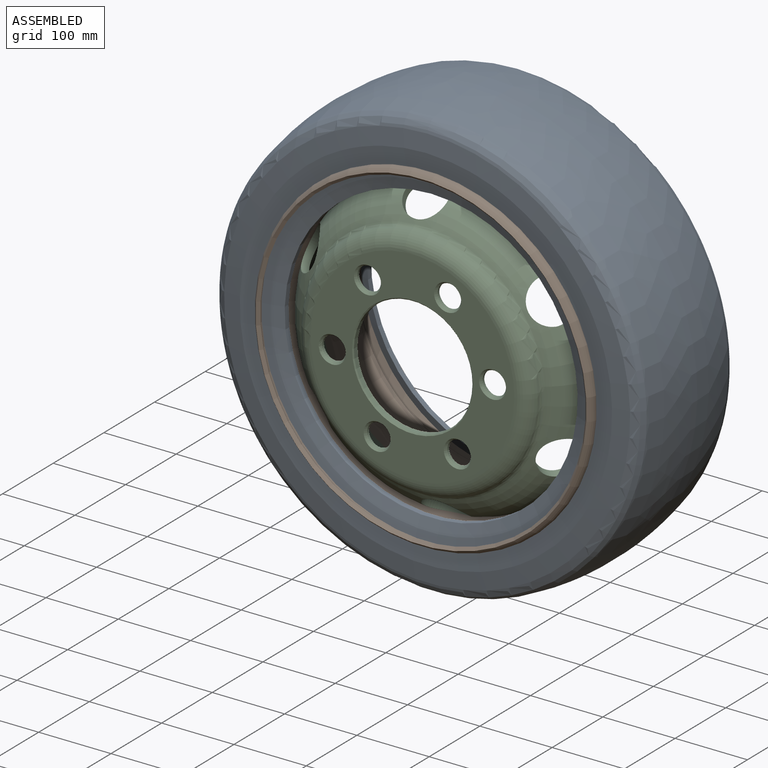
[diagram: assembled view]
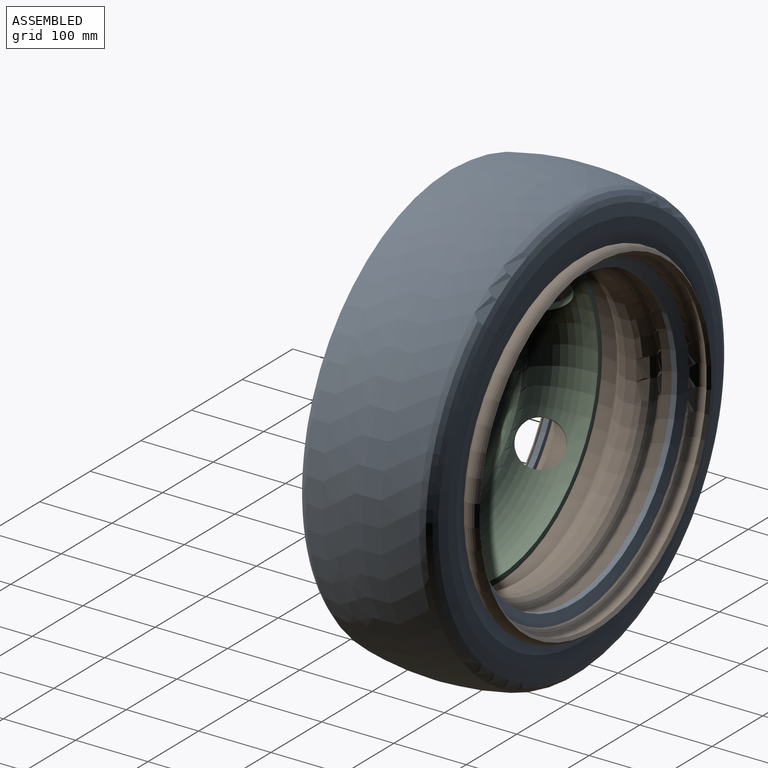
[diagram: assembled view, second angle]
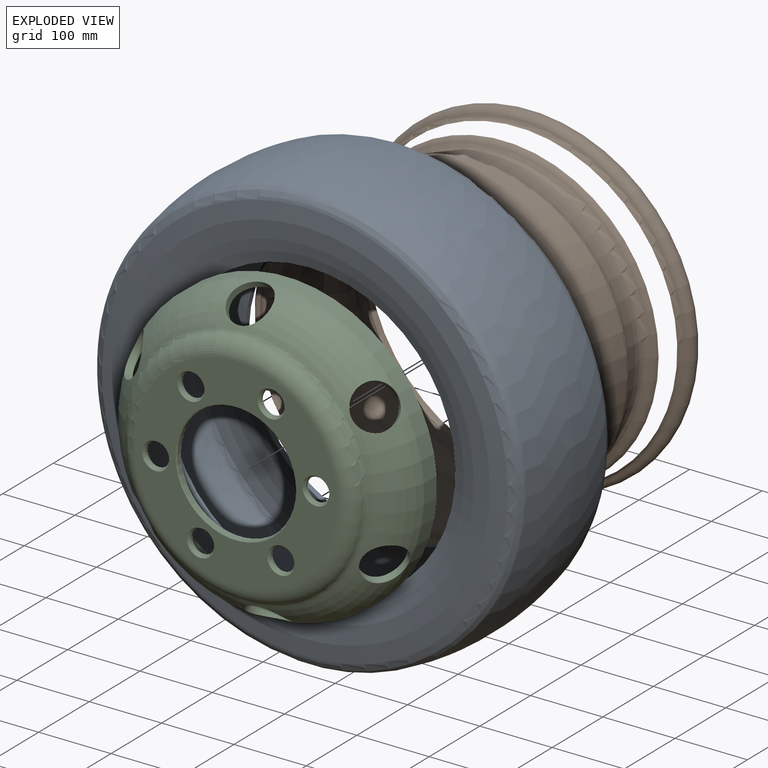
[diagram: exploded view]
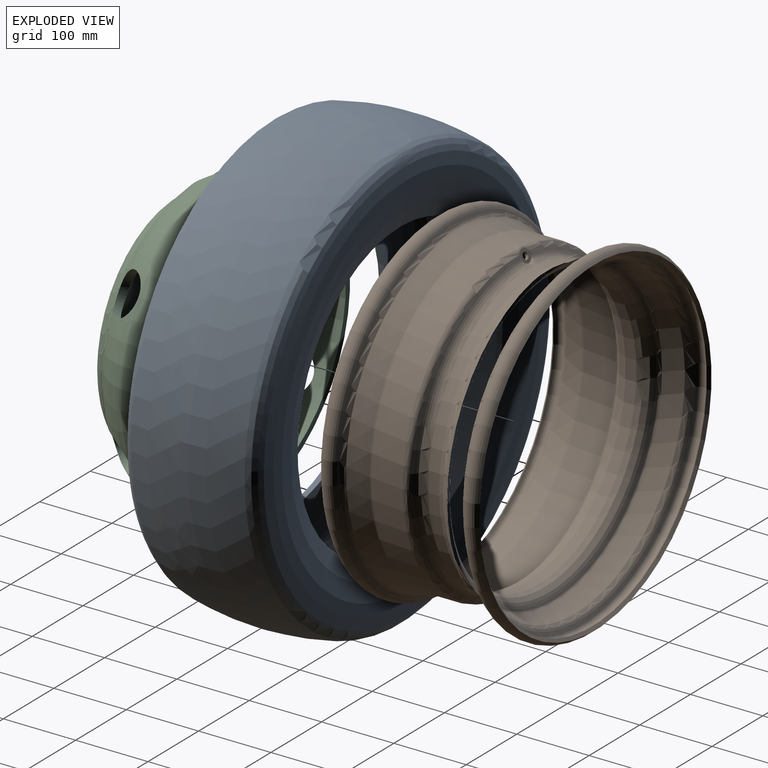
[diagram: exploded view, second angle]
ASSEMBLY  parts=3 mates=2
PART A: 16 faces, bbox 191.3x764.1x764.1 mm
  f0: torus R=255.09mm, axis (-1,0,0), area 120837.5mm2, adj f1,f15
  f1: cylinder r=202.58mm len=405.16mm, axis (-1,0,0), area 9680.7mm2, adj f0,f2
  f2: torus R=255.09mm, axis (-1,0,0), area 118746.3mm2, adj f1,f3
  f3: torus R=277.05mm, axis (-1,0,0), area 27227mm2, adj f2,f4
  f4: revolved ~596x596mm, area 133522.9mm2, adj f3,f5
  f5: cylinder r=298mm len=596mm, axis (-1,0,0), area 18542.4mm2, adj f4,f6
  f6: revolved ~596x596mm, area 133522.9mm2, adj f5,f7
  f7: torus R=277.05mm, axis (-1,0,0), area 27227mm2, adj f6,f8
  f8: torus R=255.09mm, axis (-1,0,0), area 118746.3mm2, adj f7,f9
  f9: cylinder r=202.58mm len=405.16mm, axis (-1,0,0), area 9680.7mm2, adj f8,f10
  f10: torus R=255.09mm, axis (-1,0,0), area 120837.5mm2, adj f9,f11
  f11: torus R=277.05mm, axis (-1,0,0), area 42563.2mm2, adj f10,f12
  f12: revolved ~610x610mm, area 139445.5mm2, adj f11,f13
  f13: cylinder r=305mm len=610mm, axis (-1,0,0), area 19163.7mm2, adj f12,f14
  f14: revolved ~610x610mm, area 139445.5mm2, adj f13,f15
  f15: torus R=277.05mm, axis (-1,0,0), area 42563.2mm2, adj f0,f14
PART B: 90 faces, bbox 508.8x219.6x508.8 mm
  f0: cone r=0mm half-angle=45deg, axis (0,-1,0), area 4742.4mm2, adj f1,f85
  f1: cone r=0mm half-angle=45deg, axis (0,1,0), area 7843.4mm2, adj f0,f2
  f2: cone r=0mm half-angle=45deg, axis (0,-1,0), area 4662.2mm2, adj f1,f3
  f3: torus R=222.25mm, axis (0,-1,0), area 21063.9mm2, adj f2,f4
  f4: torus R=228.66mm, axis (0,-1,0), area 18488.7mm2, adj f3,f5
  f5: cone r=0mm half-angle=15deg, axis (0,1,0), area 36774.8mm2, adj f4,f6
  f6: torus R=202.2mm, axis (0,-1,0), area 7378.3mm2, adj f5,f7
  f7: cone r=0mm half-angle=65deg, axis (0,1,0), area 400.9mm2, adj f6,f8
  f8: torus R=213.75mm, axis (0,-1,0), area 30125.6mm2, adj f7,f9
  f9: cylinder r=192.25mm len=384.5mm, axis (0,-1,0), area 18119.1mm2, adj f8,f10
  f10: torus R=213.75mm, axis (0,-1,0), area 29631.9mm2, adj f9,f11,f13,f14,f16,f17,f19,f87
  f11: bspline ~5.61x3.63mm, area 11mm2, adj f10,f12,f20,f21
  f12: bspline ~2.96x1.93mm, area 2.2mm2, adj f11,f13,f21,f22
  f13: bspline ~11.58x8.4mm, area 26.2mm2, adj f10,f12,f14,f23,f86
  f14: bspline ~11.53x8.48mm, area 14.3mm2, adj f10,f13,f15
  f15: cone r=0mm half-angle=27deg, axis (-0.03,0.89,0.45), area 52.2mm2, adj f14,f16,f86
  f16: bspline ~11.64x8.72mm, area 14.3mm2, adj f10,f15,f87
  f17: bspline ~5.45x3.69mm, area 11mm2, adj f10,f18,f21,f88
  f18: bspline ~6.88x6.08mm, area 19.1mm2, adj f17,f19,f21,f78
  f19: torus R=202.25mm, axis (0,-1,0), area 7964.2mm2, adj f10,f18,f20,f73,f74,f76,f78
  f20: bspline ~6.91x6.84mm, area 19.1mm2, adj f11,f19,f21,f76
  f21: torus R=7mm, axis (-0.03,0.89,0.45), area 23.8mm2, adj f11,f12,f17,f18,f20,f22,f25,f77
  f22: bspline ~1.82x0.97mm, area 0.5mm2, adj f12,f21,f23
  f23: cylinder r=5.69mm len=1.15mm, axis (-1,-0.05,0.03), area 0.2mm2, adj f13,f22,f25
  f24: cylinder r=5.69mm len=1.18mm, axis (-0.99,0.04,-0.14), area 0.2mm2, adj f25,f87,f89
  f25: plane 14x13.35mm, normal (0.03,-0.89,-0.45), area 93.6mm2, adj f21,f23,f24,f26,f86
  f26: cylinder r=4.85mm len=10.69mm, axis (-0.03,0.89,0.45), area 137.5mm2, adj f25,f27
  f27: plane 18.14x15.87mm, normal (-0.03,0.89,0.45), area 174.5mm2, adj f26,f28,f31,f49,f50,f53,f54
  f28: bspline ~1.31x0.96mm, area 0.4mm2, adj f27,f29,f30,f54
  f29: bspline ~1.5x0.94mm, area 0.4mm2, adj f28,f30,f44,f55
  f30: bspline ~1.74x1.36mm, area 1.1mm2, adj f28,f29,f31,f45
  f31: torus R=9mm, axis (-0.03,0.89,0.45), area 38.8mm2, adj f27,f30,f32,f36,f38,f45,f46,f47
  f32: bspline ~9.01x8.63mm, area 23.3mm2, adj f31,f33,f34,f45
  f33: torus R=213.75mm, axis (0,-1,0), area 22566.3mm2, adj f32,f34,f37,f38,f39,f41,f44,f79
  f34: bspline ~5.61x4.9mm, area 9.7mm2, adj f32,f33,f35,f36,f41
  f35: torus R=12mm, axis (-0.03,0.89,0.45), area 7.8mm2, adj f34,f36,f40,f42
  f36: cylinder r=10mm len=12.57mm, axis (-0.03,0.89,0.45), area 18.1mm2, adj f31,f34,f35,f37
  f37: bspline ~5.6x5.07mm, area 9.5mm2, adj f33,f36,f38,f42,f43
  f38: bspline ~8.7x8.36mm, area 23.3mm2, adj f31,f33,f37,f46
  f39: bspline ~8.27x6.32mm, area 6.2mm2, adj f33,f40,f43
  f40: cone r=0mm half-angle=27deg, axis (-0.03,0.89,0.45), area 30.9mm2, adj f35,f39,f41,f42
  f41: bspline ~8.45x6.29mm, area 6.4mm2, adj f33,f34,f40
  f42: bspline ~1.33x1.02mm, area 0.6mm2, adj f35,f37,f40,f43
  f43: bspline ~1.72x1.34mm, area 0.3mm2, adj f37,f39,f42
  f44: torus R=202.25mm, axis (0,-1,0), area 16264.6mm2, adj f29,f33,f45,f46,f48,f51,f55,f56
  f45: bspline ~3.59x2.86mm, area 4.2mm2, adj f30,f31,f32,f44
  f46: bspline ~3.58x2.5mm, area 4.2mm2, adj f31,f38,f44,f47
  f47: bspline ~1.74x1.4mm, area 1.1mm2, adj f31,f46,f48,f49
  f48: bspline ~1.39x1.14mm, area 0.6mm2, adj f44,f47,f49,f51
  f49: bspline ~1.1x0.91mm, area 0.4mm2, adj f27,f47,f48,f50
  f50: bspline ~2.5x2.13mm, area 2.1mm2, adj f27,f49,f51,f53
  f51: bspline ~8.06x4.52mm, area 16.3mm2, adj f44,f48,f50,f52,f60
  f52: torus R=7mm, axis (-0.03,0.89,0.45), area 63.8mm2, adj f51,f53,f55,f61
  f53: torus R=8.64mm, axis (-0.03,0.89,0.45), area 26.4mm2, adj f27,f50,f52,f54
  f54: bspline ~2.52x2.08mm, area 2.1mm2, adj f27,f28,f53,f55
  f55: bspline ~8.05x4.79mm, area 16.3mm2, adj f29,f44,f52,f54,f56
  f56: bspline ~2.97x1.79mm, area 1.4mm2, adj f44,f55,f57,f61
  f57: bspline ~9.89x8.45mm, area 16.4mm2, adj f56,f58,f59,f61
  f58: cylinder r=213.25mm len=426.5mm, axis (0,-1,0), area 57753mm2, adj f44,f57,f59,f62
  f59: bspline ~9.89x8.4mm, area 16.4mm2, adj f57,f58,f60,f61
  f60: bspline ~2.87x1.79mm, area 1.4mm2, adj f44,f51,f59,f61
  f61: cone r=0mm half-angle=15deg, axis (0.03,-0.89,-0.45), area 55.5mm2, adj f52,f56,f57,f59,f60
  f62: torus R=223.25mm, axis (0,-1,0), area 3509.7mm2, adj f58,f63
  f63: cone r=0mm half-angle=15deg, axis (0,-1,0), area 38730.6mm2, adj f62,f64
  f64: torus R=228.66mm, axis (0,-1,0), area 11147.6mm2, adj f63,f65
  f65: torus R=222.25mm, axis (0,-1,0), area 37881.9mm2, adj f64,f66
  f66: cone r=0mm half-angle=45deg, axis (0,1,0), area 4742.4mm2, adj f65,f67
  f67: cone r=0mm half-angle=45deg, axis (0,-1,0), area 7843.4mm2, adj f66,f68
  f68: cone r=0mm half-angle=45deg, axis (0,1,0), area 4662.2mm2, adj f67,f69
  f69: torus R=222.25mm, axis (0,-1,0), area 21063.9mm2, adj f68,f70
  f70: torus R=228.66mm, axis (0,-1,0), area 18488.7mm2, adj f69,f71
  f71: cone r=0mm half-angle=15deg, axis (0,-1,0), area 37783.6mm2, adj f70,f72
  f72: torus R=223.25mm, axis (0,-1,0), area 5301.4mm2, adj f71,f73,f74
  f73: cylinder r=207.75mm len=414.99mm, axis (0,-1,0), area 28063mm2, adj f19,f72,f74
  f74: cylinder r=207.75mm len=415.49mm, axis (0,-1,0), area 28182.1mm2, adj f19,f72,f73,f75
  f75: bspline ~15.03x10.88mm, area 45.9mm2, adj f74,f76,f77,f78
  f76: bspline ~5.06x3.1mm, area 4mm2, adj f19,f20,f75,f77
  f77: cone r=0mm half-angle=12deg, axis (0.03,-0.89,-0.45), area 49.2mm2, adj f21,f75,f76,f78
  f78: bspline ~4.82x3.1mm, area 4mm2, adj f18,f19,f75,f77
  f79: cylinder r=197.75mm len=395.5mm, axis (0,-1,0), area 37275mm2, adj f33,f80
  f80: torus R=213.75mm, axis (0,-1,0), area 22920.1mm2, adj f79,f81
  f81: cone r=0mm half-angle=65deg, axis (0,1,0), area 405.5mm2, adj f80,f82
  f82: torus R=202.2mm, axis (0,-1,0), area 13890mm2, adj f81,f83
  f83: cone r=0mm half-angle=15deg, axis (0,1,0), area 37696.1mm2, adj f82,f84
  f84: torus R=228.66mm, axis (0,-1,0), area 11147.6mm2, adj f83,f85
  f85: torus R=222.25mm, axis (0,-1,0), area 37881.9mm2, adj f0,f84
  f86: torus R=7.97mm, axis (-0.03,0.89,0.45), area 127.7mm2, adj f13,f15,f25,f87
  f87: bspline ~11.48x8.28mm, area 26.2mm2, adj f10,f16,f24,f86,f88
  f88: bspline ~3.45x2.36mm, area 2.3mm2, adj f17,f21,f87,f89
  f89: bspline ~1.76x0.84mm, area 0.5mm2, adj f21,f24,f88
PART C: 44 faces, bbox 476.2x127.3x476.2 mm
  f0: cone r=0mm half-angle=45deg, axis (0,-1,0), area 1102.9mm2, adj f1,f25
  f1: plane 303.6x303.6mm, normal (0,-1,0), area 33927.2mm2, adj f0,f2,f28,f31,f34,f37,f40,f43
  f2: torus R=141mm, axis (0,-1,0), area 29938.2mm2, adj f1,f3
  f3: torus R=171.71mm, axis (0,-1,0), area 6594.1mm2, adj f2,f4
  f4: torus R=130mm, axis (0,-1,0), area 64856.1mm2, adj f3,f5,f6,f8,f9,f10,f11,f14
  f5: cylinder r=30mm len=55.88mm, axis (0.74,0.57,-0.36), area 1029mm2, adj f4,f6,f7
  f6: cylinder r=30mm len=55.88mm, axis (0.74,0.57,-0.36), area 1029mm2, adj f4,f5,f7
  f7: torus R=130mm, axis (0,-1,0), area 71241.9mm2, adj f5,f6,f8,f9,f10,f11,f12,f15
  f8: cylinder r=30mm len=55.88mm, axis (0.68,0.57,0.46), area 1029mm2, adj f4,f7,f9
  f9: cylinder r=30mm len=55.88mm, axis (0.68,0.57,0.46), area 1029mm2, adj f4,f7,f8
  f10: cylinder r=30mm len=55.88mm, axis (-0.06,0.57,0.82), area 1029mm2, adj f4,f7,f11
  f11: cylinder r=30mm len=55.88mm, axis (-0.06,0.57,0.82), area 1029mm2, adj f4,f7,f10
  f12: cylinder r=200mm len=400mm, axis (0,-1,0), area 9439.6mm2, adj f7,f13
  f13: plane 416x416mm, normal (0,1,0), area 10254.2mm2, adj f12,f14
  f14: cylinder r=208mm len=416mm, axis (0,-1,0), area 33049.2mm2, adj f4,f13
  f15: cylinder r=30mm len=55.88mm, axis (-0.74,0.57,0.36), area 1029mm2, adj f4,f7,f16
  f16: cylinder r=30mm len=55.88mm, axis (-0.74,0.57,0.36), area 1029mm2, adj f4,f7,f15
  f17: cylinder r=30mm len=55.88mm, axis (-0.68,0.57,-0.46), area 1029mm2, adj f4,f7,f18
  f18: cylinder r=30mm len=55.88mm, axis (-0.68,0.57,-0.46), area 1029mm2, adj f4,f7,f17
  f19: cylinder r=30mm len=55.88mm, axis (0.06,0.57,-0.82), area 1029mm2, adj f4,f7,f20
  f20: cylinder r=30mm len=55.88mm, axis (0.06,0.57,-0.82), area 1029mm2, adj f4,f7,f19
  f21: torus R=171.71mm, axis (0,-1,0), area 14158.9mm2, adj f7,f22
  f22: torus R=141mm, axis (0,-1,0), area 16831.7mm2, adj f21,f23
  f23: plane 303.6x303.6mm, normal (0,1,0), area 33927.2mm2, adj f22,f24,f26,f29,f32,f35,f38,f41
  f24: cone r=0mm half-angle=45deg, axis (0,1,0), area 1102.9mm2, adj f23,f25
  f25: cylinder r=82mm len=164mm, axis (0,-1,0), area 3606.5mm2, adj f0,f24
  f26: sphere r=22mm, area 495.8mm2, adj f23,f27
  f27: cylinder r=16.25mm len=32.5mm, axis (0,-1,0), area 342.6mm2, adj f26,f28
  f28: sphere r=22mm, area 496.9mm2, adj f1,f27
  f29: sphere r=22mm, area 459.1mm2, adj f23,f30
  f30: cylinder r=16.25mm len=32.5mm, axis (0,-1,0), area 342.6mm2, adj f29,f31
  f31: sphere r=22mm, area 459.1mm2, adj f1,f30
  f32: sphere r=22mm, area 459.2mm2, adj f23,f33
  f33: cylinder r=16.25mm len=32.5mm, axis (0,-1,0), area 342.6mm2, adj f32,f34
  f34: sphere r=22mm, area 459.2mm2, adj f1,f33
  f35: sphere r=22mm, area 495.8mm2, adj f23,f36
  f36: cylinder r=16.25mm len=32.5mm, axis (0,-1,0), area 342.6mm2, adj f35,f37
  f37: sphere r=22mm, area 496.8mm2, adj f1,f36
  f38: sphere r=22mm, area 459.1mm2, adj f23,f39
  f39: cylinder r=16.25mm len=32.5mm, axis (0,-1,0), area 342.6mm2, adj f38,f40
  f40: sphere r=22mm, area 459.1mm2, adj f1,f39
  f41: sphere r=22mm, area 459.2mm2, adj f23,f42
  f42: cylinder r=16.25mm len=32.5mm, axis (0,-1,0), area 342.6mm2, adj f41,f43
  f43: sphere r=22mm, area 459.2mm2, adj f1,f42
PLACE A rot(axis=(-0.58,-0.58,0.58),120deg) t=(76.53,-76.38,-305.92)mm
PLACE B t=(76.53,699.05,-305.92)mm
PLACE C t=(76.53,712.37,-305.92)mm
MATE fastened A.f0 <-> B.f0  axis (0,-1,0) through (76.53,93.62,-305.92)mm
MATE fastened C.f0 <-> B.f0  axis (0,-1,0) through (76.53,-113.88,-305.92)mm
